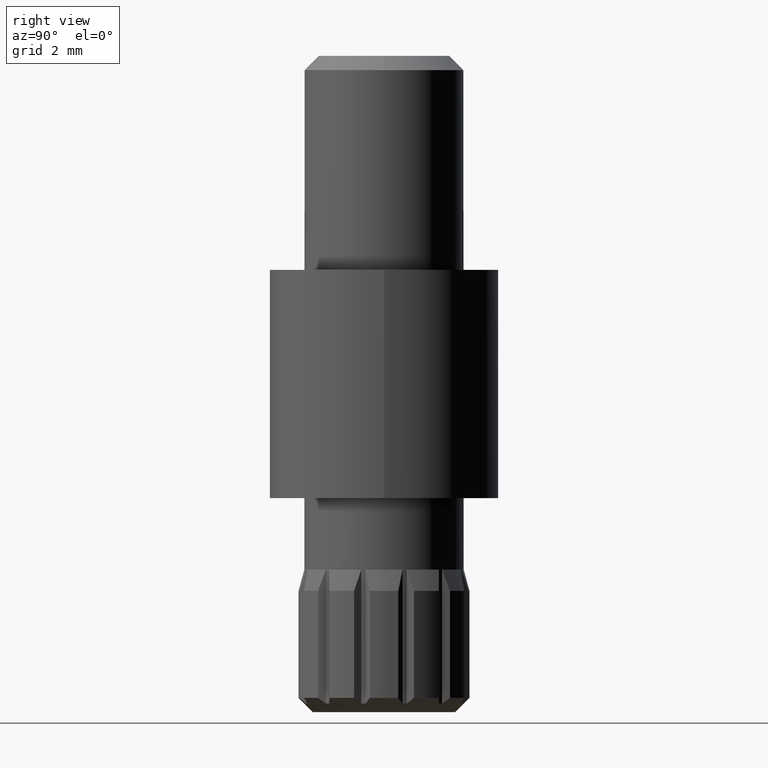
[diagram: clean part render]
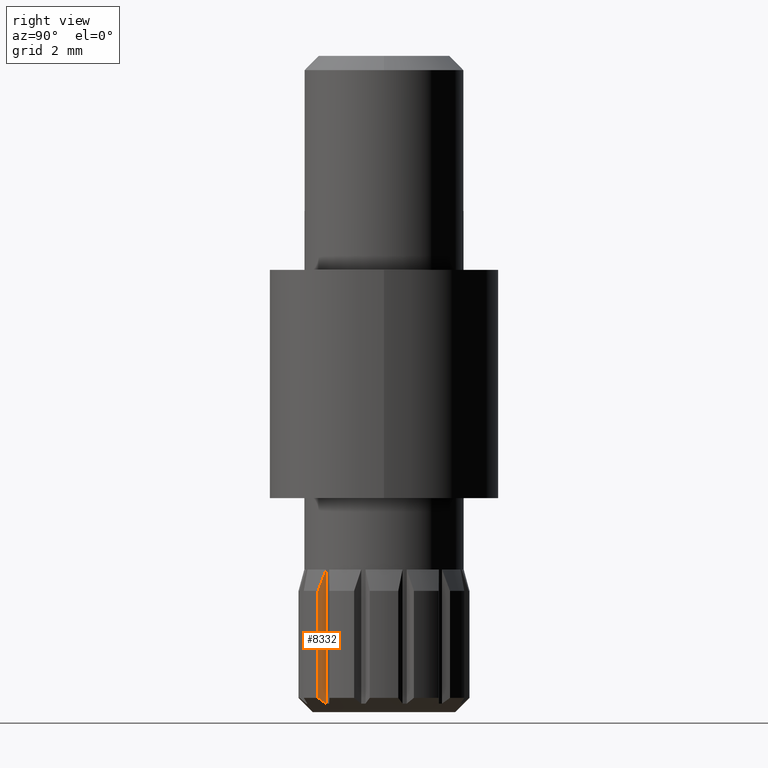
[diagram: same view with one face highlighted and labeled with its STEP entity id]
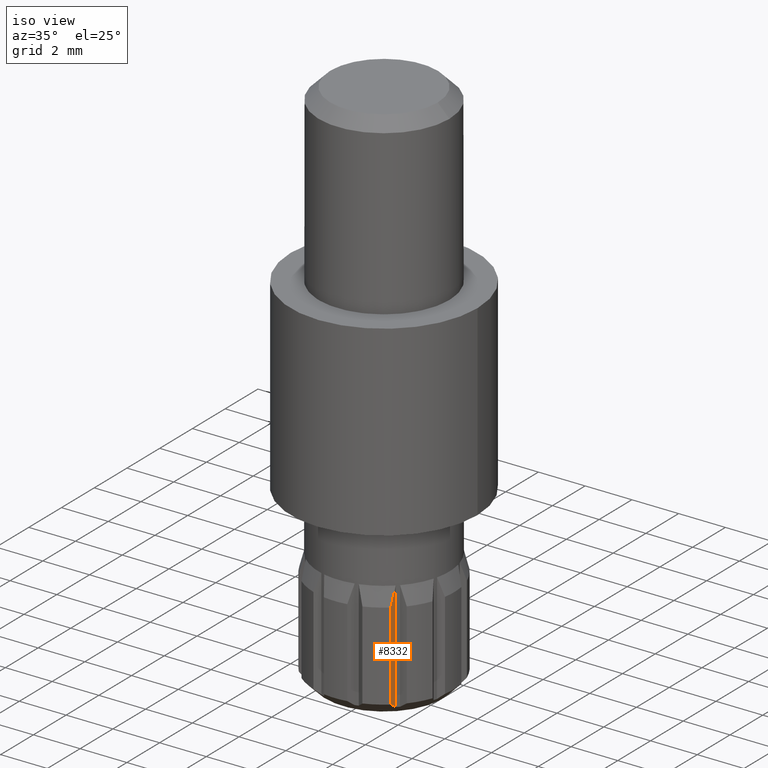
[diagram: same view with one face highlighted and labeled with its STEP entity id]
A machine part, right view. The second image highlights one B-rep face of the part: STEP entity #8332.
A second angle (iso view) of the same face is appended — the face is thin or edge-on in the first view.
In plain terms, the highlighted planar face has unit normal (0.999, -0.0454, 0).
Its self-contained STEP definition (entity closure, byte-faithful):
#720 = CARTESIAN_POINT ( 'NONE',  ( 1.916132568165369143, -2.221517232374599082, 4.500908567543602246 ) ) ;
#1350 = EDGE_LOOP ( 'NONE', ( #6801, #11540, #2083, #5276 ) ) ;
#1368 = DIRECTION ( 'NONE',  ( 0.000000000000000000, 0.000000000000000000, -1.000000000000000000 ) ) ;
#1756 = CARTESIAN_POINT ( 'NONE',  ( 1.912032647667110119, -2.311737691489910596, 0.4999999999999998890 ) ) ;
#1998 = DIRECTION ( 'NONE',  ( 0.04539650666530836709, 0.9989690471594135923, 0.000000000000000000 ) ) ;
#1999 = AXIS2_PLACEMENT_3D ( 'NONE', #3981, #5869, #1998 ) ;
#2083 = ORIENTED_EDGE ( 'NONE', *, *, #2350, .F. ) ;
#2207 = CARTESIAN_POINT ( 'NONE',  ( 1.924670895599505327, -2.033627779027469273, 5.000000000000000888 ) ) ;
#2350 = EDGE_CURVE ( 'NONE', #6872, #10584, #6176, .T. ) ;
#2882 = PLANE ( 'NONE',  #1999 ) ;
#3046 = EDGE_CURVE ( 'NONE', #10180, #6872, #12013, .T. ) ;
#3173 = FACE_OUTER_BOUND ( 'NONE', #1350, .T. ) ;
#3679 = LINE ( 'NONE', #9779, #10931 ) ;
#3981 = CARTESIAN_POINT ( 'NONE',  ( 1.924670895599505327, -2.033627779027469273, 5.000000000000000000 ) ) ;
#4672 = CARTESIAN_POINT ( 'NONE',  ( 1.916200600912734808, -2.220020143417681613, 0.4319807832766577316 ) ) ;
#5078 = CARTESIAN_POINT ( 'NONE',  ( 1.924670895599505327, -2.033627779027469273, 0.2999999999999997669 ) ) ;
#5140 = CARTESIAN_POINT ( 'NONE',  ( 1.912032647667110119, -2.311737691489911928, 4.250000000000000000 ) ) ;
#5276 = ORIENTED_EDGE ( 'NONE', *, *, #3046, .F. ) ;
#5869 = DIRECTION ( 'NONE',  ( 0.9989690471594135923, -0.04539650666530836709, 0.000000000000000000 ) ) ;
#6176 = B_SPLINE_CURVE_WITH_KNOTS ( 'NONE', 3,
 ( #7593, #10588, #4672, #1756 ),
 .UNSPECIFIED., .F., .F.,
 ( 4, 4 ),
 ( 2.437016887063256081E-07, 0.0003430335042216862344 ),
 .UNSPECIFIED. ) ;
#6801 = ORIENTED_EDGE ( 'NONE', *, *, #12134, .F. ) ;
#6872 = VERTEX_POINT ( 'NONE', #5078 ) ;
#7241 = CARTESIAN_POINT ( 'NONE',  ( 1.924670895599505327, -2.033627779027469273, 5.000000000000000000 ) ) ;
#7312 = EDGE_CURVE ( 'NONE', #11277, #10584, #3679, .T. ) ;
#7593 = CARTESIAN_POINT ( 'NONE',  ( 1.924670895599505327, -2.033627779027469273, 0.2999999999999997669 ) ) ;
#8332 = ADVANCED_FACE ( 'NONE', ( #3173 ), #2882, .T. ) ;
#9395 = VECTOR ( 'NONE', #1368, 1000.000000000000000 ) ;
#9730 = CARTESIAN_POINT ( 'NONE',  ( 1.924670895599505327, -2.033627779027469273, 5.000000000000000888 ) ) ;
#9779 = CARTESIAN_POINT ( 'NONE',  ( 1.912032647667110119, -2.311737691489910596, 5.000000000000000000 ) ) ;
#10180 = VERTEX_POINT ( 'NONE', #2207 ) ;
#10584 = VERTEX_POINT ( 'NONE', #12181 ) ;
#10588 = CARTESIAN_POINT ( 'NONE',  ( 1.920410119468683119, -2.127387933370354034, 0.3651688080806902992 ) ) ;
#10711 = CARTESIAN_POINT ( 'NONE',  ( 1.912032647667110119, -2.311737691489911928, 4.250000000000000000 ) ) ;
#10931 = VECTOR ( 'NONE', #11604, 1000.000000000000000 ) ;
#11277 = VERTEX_POINT ( 'NONE', #5140 ) ;
#11512 = B_SPLINE_CURVE_WITH_KNOTS ( 'NONE', 3,
 ( #10711, #720, #12543, #9730 ),
 .UNSPECIFIED., .F., .F.,
 ( 4, 4 ),
 ( 2.125509851734810367E-07, 0.0008002155814297953230 ),
 .UNSPECIFIED. ) ;
#11540 = ORIENTED_EDGE ( 'NONE', *, *, #7312, .T. ) ;
#11604 = DIRECTION ( 'NONE',  ( 0.000000000000000000, 0.000000000000000000, -1.000000000000000000 ) ) ;
#12013 = LINE ( 'NONE', #7241, #9395 ) ;
#12134 = EDGE_CURVE ( 'NONE', #11277, #10180, #11512, .T. ) ;
#12181 = CARTESIAN_POINT ( 'NONE',  ( 1.912032647667110119, -2.311737691489910596, 0.4999999999999998890 ) ) ;
#12543 = CARTESIAN_POINT ( 'NONE',  ( 1.920330675035805790, -2.129136141222530032, 4.751060318361801649 ) ) ;